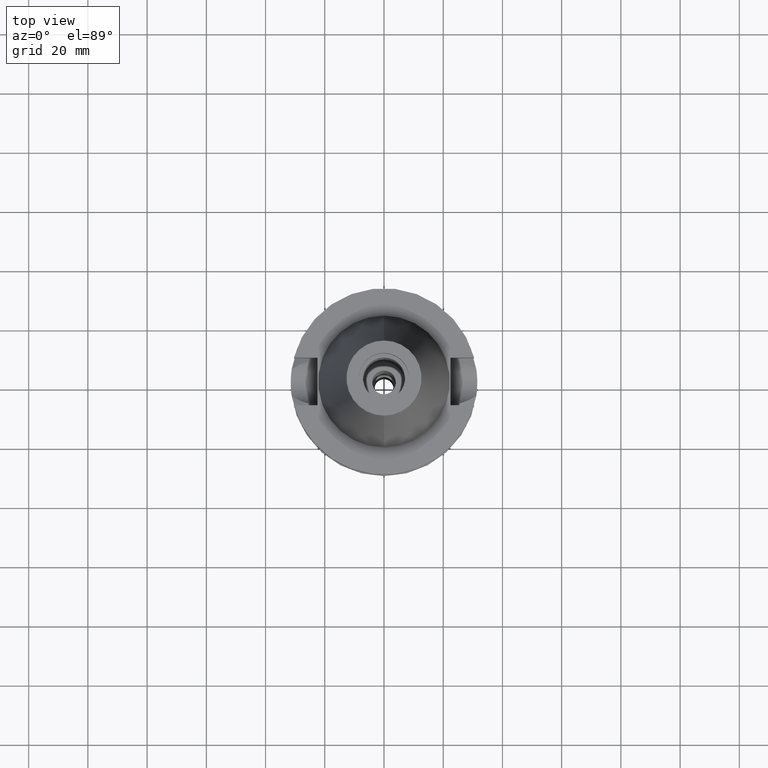
[diagram: clean part render]
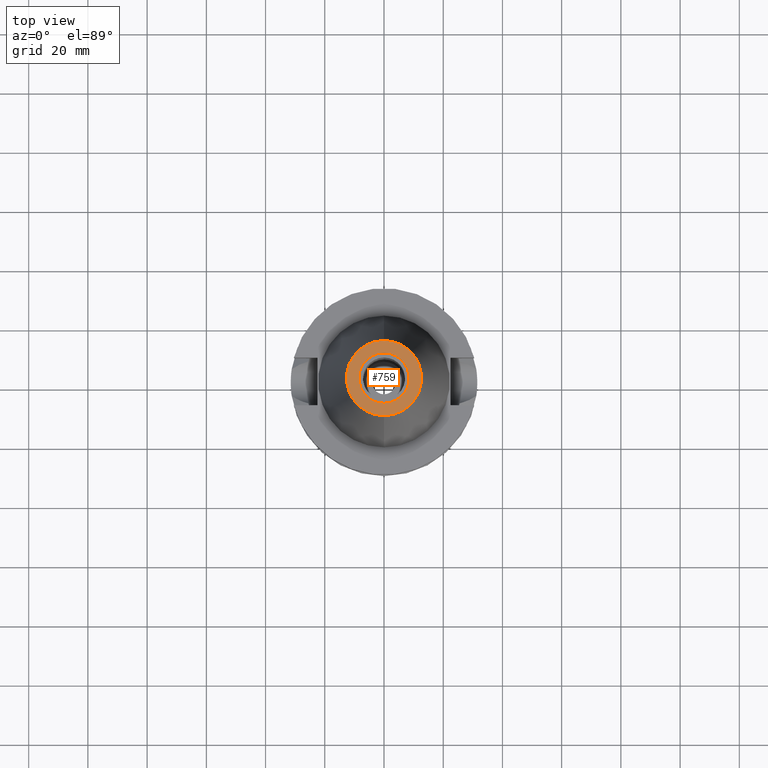
[diagram: same view with one face highlighted and labeled with its STEP entity id]
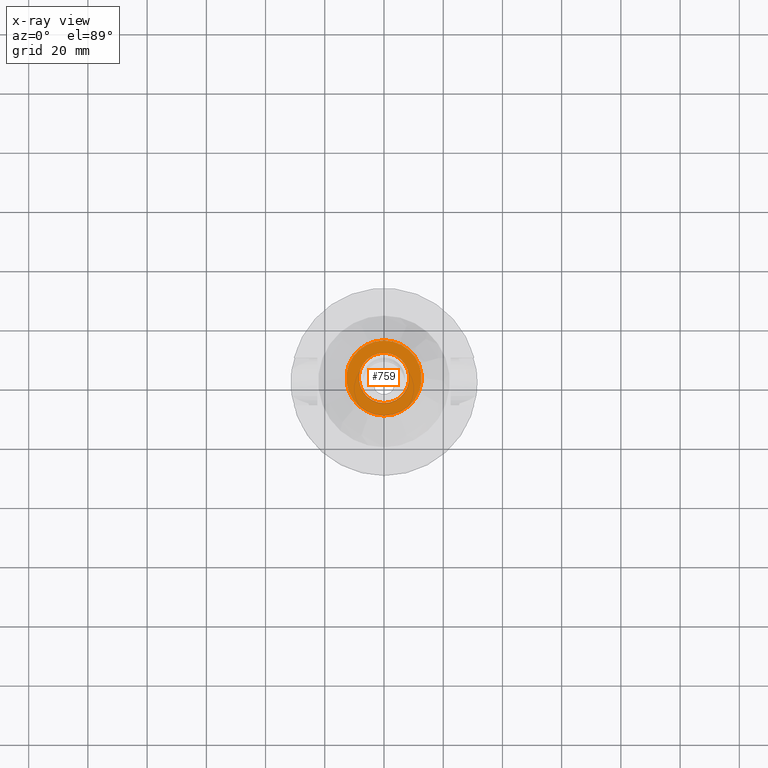
[diagram: x-ray of the same camera — body ghosted, the highlighted face saturated]
A machine part, top view. The second image highlights one B-rep face of the part: STEP entity #759.
The next image is the same camera in x-ray: the body ghosted, the highlighted face saturated — about 0% of this face is hidden behind the body in this view.
In plain terms, the highlighted planar face has unit normal (0, 0, -1).
Its self-contained STEP definition (entity closure, byte-faithful):
#193 = VERTEX_POINT ( 'NONE', #1922 ) ;
#197 = DIRECTION ( 'NONE',  ( 0.0000000000000000000, 0.0000000000000000000, 1.000000000000000000 ) ) ;
#201 = CARTESIAN_POINT ( 'NONE',  ( 0.0000000000000000000, 0.0000000000000000000, 65.40000000000000568 ) ) ;
#224 = CIRCLE ( 'NONE', #2447, 8.500000000000000000 ) ;
#278 = CARTESIAN_POINT ( 'NONE',  ( 0.0000000000000000000, 8.500000000000000000, 65.40000000000000568 ) ) ;
#320 = CIRCLE ( 'NONE', #2541, 8.500000000000000000 ) ;
#418 = PLANE ( 'NONE',  #3059 ) ;
#430 = CARTESIAN_POINT ( 'NONE',  ( 0.0000000000000000000, 0.0000000000000000000, 65.40000000000000568 ) ) ;
#542 = CARTESIAN_POINT ( 'NONE',  ( 0.0000000000000000000, 12.68766899429999917, 65.40000000000000568 ) ) ;
#594 = DIRECTION ( 'NONE',  ( 0.0000000000000000000, 1.000000000000000000, 0.0000000000000000000 ) ) ;
#609 = ORIENTED_EDGE ( 'NONE', *, *, #2064, .F. ) ;
#626 = CIRCLE ( 'NONE', #1449, 12.68766899429999917 ) ;
#733 = CARTESIAN_POINT ( 'NONE',  ( 0.0000000000000000000, -12.68766899429999917, 65.40000000000000568 ) ) ;
#759 = ADVANCED_FACE ( 'NONE', ( #1901, #2888 ), #418, .F. ) ;
#1026 = VERTEX_POINT ( 'NONE', #278 ) ;
#1185 = DIRECTION ( 'NONE',  ( 0.0000000000000000000, -1.000000000000000000, 0.0000000000000000000 ) ) ;
#1449 = AXIS2_PLACEMENT_3D ( 'NONE', #430, #2111, #2370 ) ;
#1602 = CIRCLE ( 'NONE', #2170, 12.68766899429999917 ) ;
#1632 = DIRECTION ( 'NONE',  ( 0.0000000000000000000, -1.000000000000000000, 0.0000000000000000000 ) ) ;
#1709 = EDGE_CURVE ( 'NONE', #1026, #193, #224, .T. ) ;
#1766 = EDGE_LOOP ( 'NONE', ( #3065, #609 ) ) ;
#1901 = FACE_OUTER_BOUND ( 'NONE', #2946, .T. ) ;
#1922 = CARTESIAN_POINT ( 'NONE',  ( 0.0000000000000000000, -8.500000000000000000, 65.40000000000000568 ) ) ;
#1978 = ORIENTED_EDGE ( 'NONE', *, *, #2875, .F. ) ;
#1989 = EDGE_CURVE ( 'NONE', #3188, #2537, #626, .T. ) ;
#2064 = EDGE_CURVE ( 'NONE', #193, #1026, #320, .T. ) ;
#2097 = CARTESIAN_POINT ( 'NONE',  ( 0.0000000000000000000, 0.0000000000000000000, 65.40000000000000568 ) ) ;
#2111 = DIRECTION ( 'NONE',  ( 0.0000000000000000000, 0.0000000000000000000, -1.000000000000000000 ) ) ;
#2170 = AXIS2_PLACEMENT_3D ( 'NONE', #2978, #2478, #2237 ) ;
#2237 = DIRECTION ( 'NONE',  ( 0.0000000000000000000, -1.000000000000000000, 0.0000000000000000000 ) ) ;
#2370 = DIRECTION ( 'NONE',  ( 0.0000000000000000000, 1.000000000000000000, 0.0000000000000000000 ) ) ;
#2390 = DIRECTION ( 'NONE',  ( 0.0000000000000000000, 0.0000000000000000000, -1.000000000000000000 ) ) ;
#2416 = CARTESIAN_POINT ( 'NONE',  ( 0.0000000000000000000, 0.0000000000000000000, 65.40000000000000568 ) ) ;
#2447 = AXIS2_PLACEMENT_3D ( 'NONE', #2097, #2795, #594 ) ;
#2478 = DIRECTION ( 'NONE',  ( 0.0000000000000000000, 0.0000000000000000000, -1.000000000000000000 ) ) ;
#2537 = VERTEX_POINT ( 'NONE', #733 ) ;
#2541 = AXIS2_PLACEMENT_3D ( 'NONE', #2416, #197, #1185 ) ;
#2795 = DIRECTION ( 'NONE',  ( 0.0000000000000000000, 0.0000000000000000000, 1.000000000000000000 ) ) ;
#2875 = EDGE_CURVE ( 'NONE', #2537, #3188, #1602, .T. ) ;
#2888 = FACE_BOUND ( 'NONE', #1766, .T. ) ;
#2946 = EDGE_LOOP ( 'NONE', ( #2967, #1978 ) ) ;
#2967 = ORIENTED_EDGE ( 'NONE', *, *, #1989, .F. ) ;
#2978 = CARTESIAN_POINT ( 'NONE',  ( 0.0000000000000000000, 0.0000000000000000000, 65.40000000000000568 ) ) ;
#3059 = AXIS2_PLACEMENT_3D ( 'NONE', #201, #2390, #1632 ) ;
#3065 = ORIENTED_EDGE ( 'NONE', *, *, #1709, .F. ) ;
#3188 = VERTEX_POINT ( 'NONE', #542 ) ;